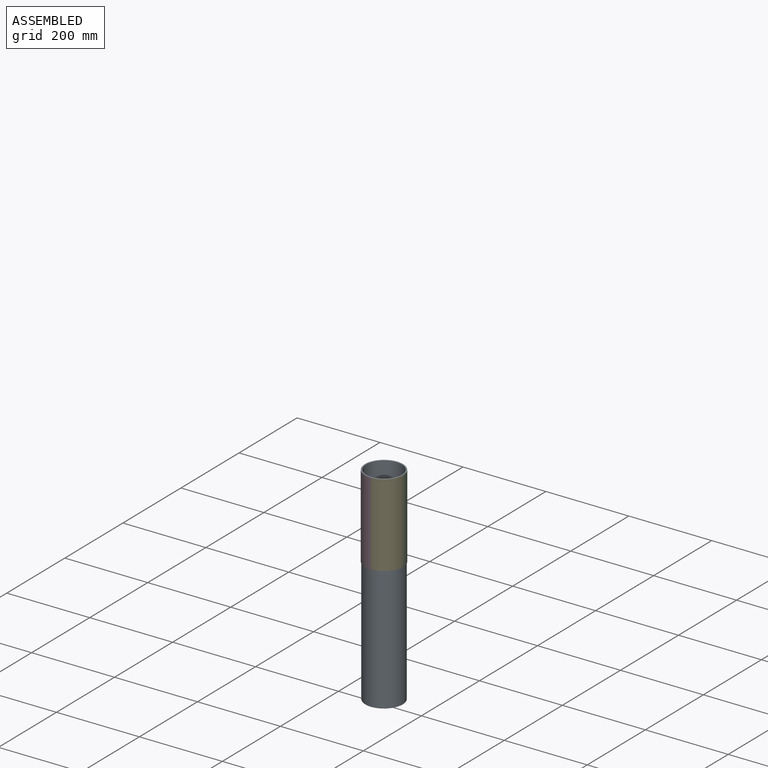
[diagram: assembled view]
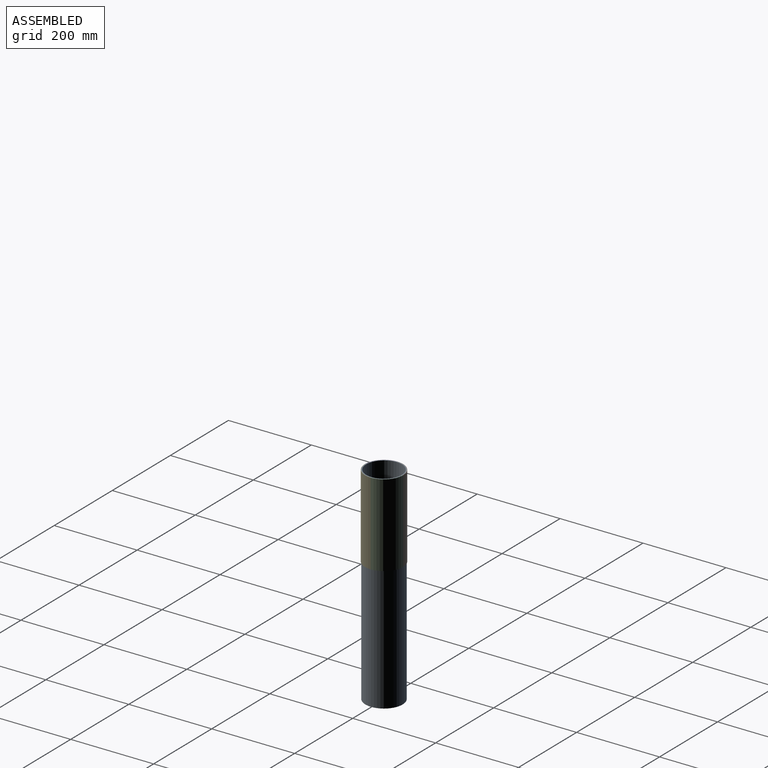
[diagram: assembled view, second angle]
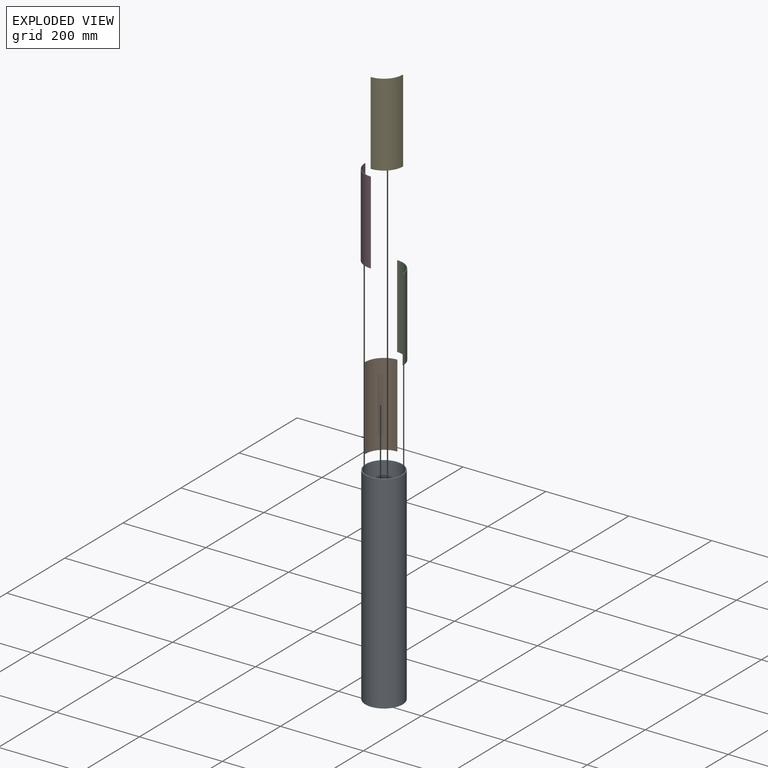
[diagram: exploded view]
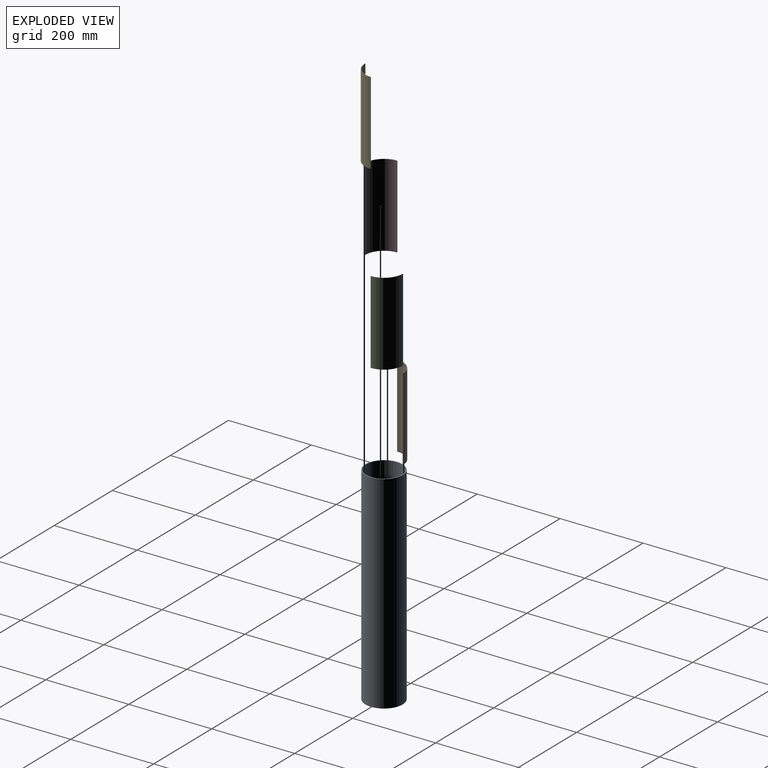
[diagram: exploded view, second angle]
ASSEMBLY  parts=5 mates=4
PART A: 4 faces, bbox 90x90x500 mm
  f0: cylinder r=43mm len=500mm, axis (0,0,-1), area 135088.5mm2, adj f2,f3
  f1: cylinder r=45mm len=500mm, axis (0,0,-1), area 141371.7mm2, adj f2,f3
  f2: plane 90x90mm, normal (0,0,-1), area 552.9mm2, adj f0,f1
  f3: plane 90x90mm, normal (0,0,1), area 552.9mm2, adj f0,f1
PART B: 6 faces, bbox 46x200x46 mm
  f0: plane 200x1mm, normal (0,0,-1), area 200mm2, adj f1,f2,f3,f4
  f1: cylinder r=46mm len=200mm, axis (0,1,0), area 14451.3mm2, adj f0,f3,f4,f5
  f2: cylinder r=45mm len=200mm, axis (0,1,0), area 14137.2mm2, adj f0,f3,f4,f5
  f3: plane 46x46mm, normal (0,-1,0), area 71.5mm2, adj f0,f1,f2,f5
  f4: plane 46x46mm, normal (0,1,0), area 71.5mm2, adj f0,f1,f2,f5
  f5: plane 200x1mm, normal (-1,0,0), area 200mm2, adj f1,f2,f3,f4
PART C: 6 faces, bbox 46x200x46 mm
  f0: plane 46x46mm, normal (0,1,0), area 71.5mm2, adj f2,f3,f4,f5
  f1: plane 46x46mm, normal (0,-1,0), area 71.5mm2, adj f2,f3,f4,f5
  f2: cylinder r=45mm len=200mm, axis (0,1,0), area 14137.2mm2, adj f0,f1,f4,f5
  f3: cylinder r=46mm len=200mm, axis (0,1,0), area 14451.3mm2, adj f0,f1,f4,f5
  f4: plane 200x1mm, normal (0,0,-1), area 200mm2, adj f0,f1,f2,f3
  f5: plane 200x1mm, normal (1,0,0), area 200mm2, adj f0,f1,f2,f3
PART D: 6 faces, bbox 46x200x46 mm
  f0: cylinder r=46mm len=200mm, axis (0,1,0), area 14451.3mm2, adj f2,f3,f4,f5
  f1: cylinder r=45mm len=200mm, axis (0,1,0), area 14137.2mm2, adj f2,f3,f4,f5
  f2: plane 46x46mm, normal (0,-1,0), area 71.5mm2, adj f0,f1,f4,f5
  f3: plane 46x46mm, normal (0,1,0), area 71.5mm2, adj f0,f1,f4,f5
  f4: plane 200x1mm, normal (0,0,1), area 200mm2, adj f0,f1,f2,f3
  f5: plane 200x1mm, normal (1,0,0), area 200mm2, adj f0,f1,f2,f3
PART E: 6 faces, bbox 46x200x46 mm
  f0: plane 200x1mm, normal (0,0,1), area 200mm2, adj f1,f2,f3,f4
  f1: plane 46x46mm, normal (0,1,0), area 71.5mm2, adj f0,f3,f4,f5
  f2: plane 46x46mm, normal (0,-1,0), area 71.5mm2, adj f0,f3,f4,f5
  f3: cylinder r=45mm len=200mm, axis (0,1,0), area 14137.2mm2, adj f0,f1,f2,f5
  f4: cylinder r=46mm len=200mm, axis (0,1,0), area 14451.3mm2, adj f0,f1,f2,f5
  f5: plane 200x1mm, normal (-1,0,0), area 200mm2, adj f1,f2,f3,f4
PLACE A t=(-95.98,8.43,-154.23)mm
PLACE B rot(axis=(-0.58,-0.58,0.58),120deg) t=(-95.98,8.43,145.77)mm
PLACE C rot(axis=(-0.58,0.58,-0.58),120deg) t=(-95.98,8.43,145.77)mm
PLACE D rot(axis=(-1,0,0),90deg) t=(-95.98,8.43,145.77)mm
PLACE E rot(axis=(-1,0,0),90deg) t=(-95.98,8.43,145.77)mm
MATE fastened D.f1 <-> A.f0  axis (0,0,-1) through (-95.98,8.43,345.77)mm
MATE fastened E.f3 <-> A.f0  axis (0,0,1) through (-95.98,8.43,345.77)mm
MATE fastened B.f2 <-> A.f0  axis (0,0,1) through (-95.98,8.43,345.77)mm
MATE fastened C.f2 <-> A.f0  axis (0,0,-1) through (-95.98,8.43,345.77)mm
